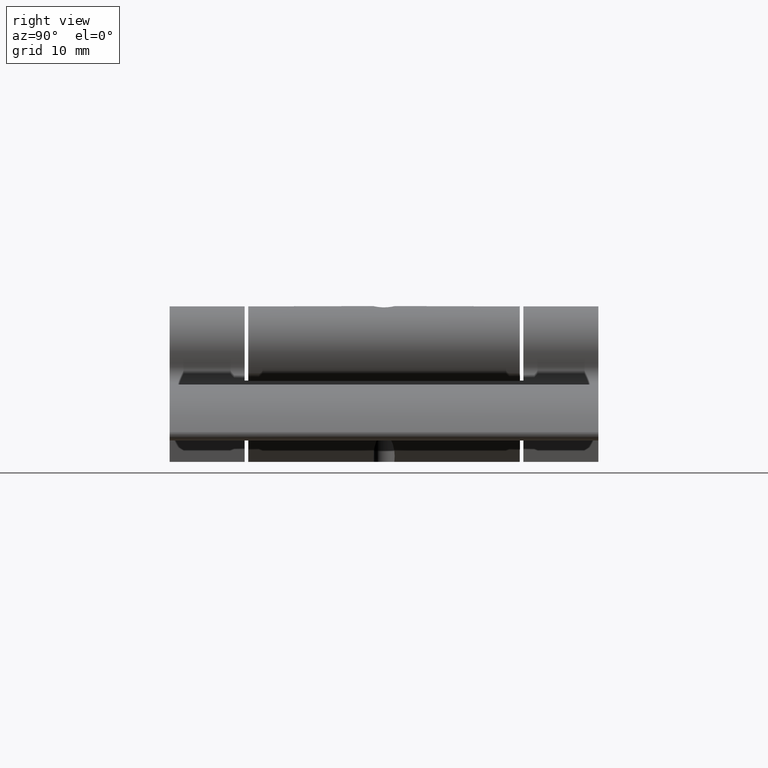
[diagram: clean part render]
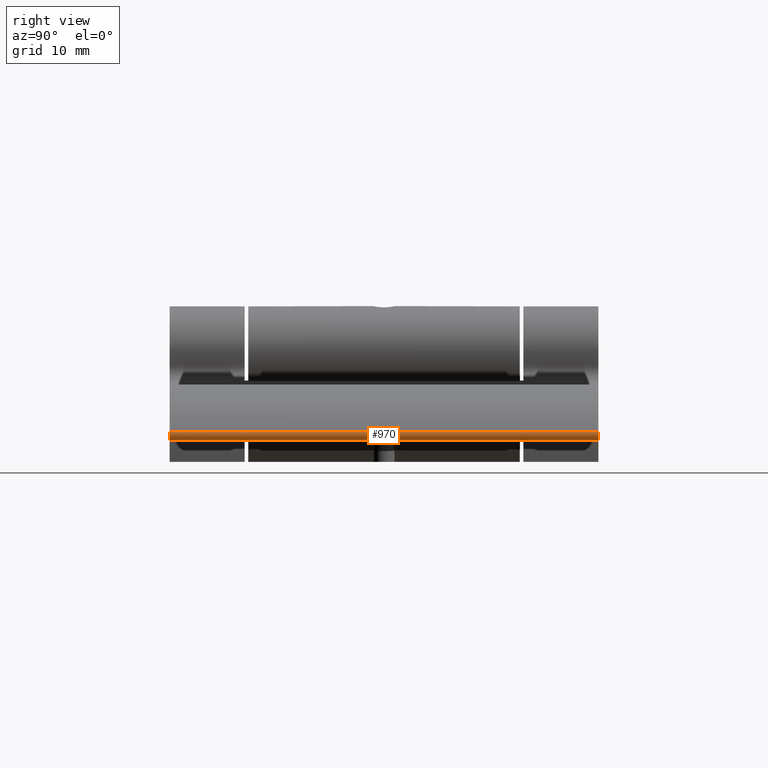
[diagram: same view with one face highlighted and labeled with its STEP entity id]
A machine part, right view. The second image highlights one B-rep face of the part: STEP entity #970.
In plain terms, the highlighted face is a freeform B-spline surface patch.
Its self-contained STEP definition (entity closure, byte-faithful):
#29=B_SPLINE_CURVE_WITH_KNOTS('',3,(#1605,#1606,#1607,#1608,#1609,#1610),
 .UNSPECIFIED.,.F.,.F.,(4,1,1,4),(0.228202346334164,0.285714285714286,0.571428571428571,
1.),.UNSPECIFIED.);
#30=B_SPLINE_CURVE_WITH_KNOTS('',3,(#1612,#1613,#1614,#1615),
 .UNSPECIFIED.,.F.,.F.,(4,4),(-6.,0.),.UNSPECIFIED.);
#31=B_SPLINE_CURVE_WITH_KNOTS('',3,(#1617,#1618,#1619,#1620,#1621,#1622),
 .UNSPECIFIED.,.F.,.F.,(4,1,1,4),(-1.,-0.571428571428571,-0.285714285714286,
-0.228202346334164),.UNSPECIFIED.);
#32=B_SPLINE_CURVE_WITH_KNOTS('',3,(#1624,#1625,#1626,#1627),
 .UNSPECIFIED.,.F.,.F.,(4,4),(-0.228202346334164,0.),.UNSPECIFIED.);
#33=B_SPLINE_CURVE_WITH_KNOTS('',3,(#1629,#1630,#1631,#1632),
 .UNSPECIFIED.,.F.,.F.,(4,4),(0.,6.),.UNSPECIFIED.);
#34=B_SPLINE_CURVE_WITH_KNOTS('',3,(#1633,#1634,#1635,#1636),
 .UNSPECIFIED.,.F.,.F.,(4,4),(0.,0.228202346334164),.UNSPECIFIED.);
#48=B_SPLINE_SURFACE_WITH_KNOTS('',3,3,((#1579,#1580,#1581,#1582),(#1583,
#1584,#1585,#1586),(#1587,#1588,#1589,#1590),(#1591,#1592,#1593,#1594),
(#1595,#1596,#1597,#1598),(#1599,#1600,#1601,#1602)),.UNSPECIFIED.,.F.,
 .F.,.F.,(4,1,1,4),(4,4),(0.,0.285714285714286,0.571428571428571,1.),(0.,
6.),.UNSPECIFIED.);
#127=FACE_OUTER_BOUND('',#175,.T.);
#175=EDGE_LOOP('',(#763,#764,#765,#766,#767,#768));
#456=VERTEX_POINT('',#1603);
#457=VERTEX_POINT('',#1604);
#458=VERTEX_POINT('',#1611);
#459=VERTEX_POINT('',#1616);
#460=VERTEX_POINT('',#1623);
#461=VERTEX_POINT('',#1628);
#577=EDGE_CURVE('',#456,#457,#29,.T.);
#578=EDGE_CURVE('',#457,#458,#30,.T.);
#579=EDGE_CURVE('',#458,#459,#31,.T.);
#580=EDGE_CURVE('',#459,#460,#32,.T.);
#581=EDGE_CURVE('',#460,#461,#33,.T.);
#582=EDGE_CURVE('',#461,#456,#34,.T.);
#763=ORIENTED_EDGE('',*,*,#577,.T.);
#764=ORIENTED_EDGE('',*,*,#578,.T.);
#765=ORIENTED_EDGE('',*,*,#579,.T.);
#766=ORIENTED_EDGE('',*,*,#580,.T.);
#767=ORIENTED_EDGE('',*,*,#581,.T.);
#768=ORIENTED_EDGE('',*,*,#582,.T.);
#970=ADVANCED_FACE('',(#127),#48,.F.);
#1579=CARTESIAN_POINT('Ctrl Pts',(39.9140261061395,30.,-11.1248543994776));
#1580=CARTESIAN_POINT('Ctrl Pts',(39.9140261061395,10.,-11.1248543994776));
#1581=CARTESIAN_POINT('Ctrl Pts',(39.9140261061395,-10.,-11.1248543994776));
#1582=CARTESIAN_POINT('Ctrl Pts',(39.9140261061395,-30.,-11.1248543994776));
#1583=CARTESIAN_POINT('Ctrl Pts',(39.9844922625149,30.,-11.2655053740222));
#1584=CARTESIAN_POINT('Ctrl Pts',(39.9844922625149,10.,-11.2655053740222));
#1585=CARTESIAN_POINT('Ctrl Pts',(39.9844922625149,-10.,-11.2655053740222));
#1586=CARTESIAN_POINT('Ctrl Pts',(39.9844922625149,-30.,-11.2655053740222));
#1587=CARTESIAN_POINT('Ctrl Pts',(40.0407595921038,30.,-11.5879287519314));
#1588=CARTESIAN_POINT('Ctrl Pts',(40.0407595921038,10.,-11.5879287519314));
#1589=CARTESIAN_POINT('Ctrl Pts',(40.0407595921038,-10.,-11.5879287519314));
#1590=CARTESIAN_POINT('Ctrl Pts',(40.0407595921038,-30.,-11.5879287519314));
#1591=CARTESIAN_POINT('Ctrl Pts',(39.8135844392406,30.,-12.1166805367457));
#1592=CARTESIAN_POINT('Ctrl Pts',(39.8135844392406,10.,-12.1166805367457));
#1593=CARTESIAN_POINT('Ctrl Pts',(39.8135844392406,-10.,-12.1166805367457));
#1594=CARTESIAN_POINT('Ctrl Pts',(39.8135844392406,-30.,-12.1166805367457));
#1595=CARTESIAN_POINT('Ctrl Pts',(39.4243687454637,30.,-12.3));
#1596=CARTESIAN_POINT('Ctrl Pts',(39.4243687454637,10.,-12.3));
#1597=CARTESIAN_POINT('Ctrl Pts',(39.4243687454637,-10.,-12.3));
#1598=CARTESIAN_POINT('Ctrl Pts',(39.4243687454637,-30.,-12.3));
#1599=CARTESIAN_POINT('Ctrl Pts',(39.1883954511527,30.,-12.3));
#1600=CARTESIAN_POINT('Ctrl Pts',(39.1883954511527,10.,-12.3));
#1601=CARTESIAN_POINT('Ctrl Pts',(39.1883954511527,-10.,-12.3));
#1602=CARTESIAN_POINT('Ctrl Pts',(39.1883954511527,-30.,-12.3));
#1603=CARTESIAN_POINT('',(40.,-30.,-11.4883954511528));
#1604=CARTESIAN_POINT('',(39.1883954511527,-30.,-12.3));
#1605=CARTESIAN_POINT('Ctrl Pts',(39.9997218378176,-30.,-11.488161456285));
#1606=CARTESIAN_POINT('Ctrl Pts',(39.999756441912,-30.,-11.5197933238789));
#1607=CARTESIAN_POINT('Ctrl Pts',(39.9889176891916,-30.,-11.7085911498544));
#1608=CARTESIAN_POINT('Ctrl Pts',(39.8135844392406,-30.,-12.1166805367457));
#1609=CARTESIAN_POINT('Ctrl Pts',(39.4243687454637,-30.,-12.3));
#1610=CARTESIAN_POINT('Ctrl Pts',(39.1883954511527,-30.,-12.3));
#1611=CARTESIAN_POINT('',(39.1883954511527,30.,-12.3));
#1612=CARTESIAN_POINT('Ctrl Pts',(39.1883954511527,-30.,-12.3));
#1613=CARTESIAN_POINT('Ctrl Pts',(39.1883954511527,-10.,-12.3));
#1614=CARTESIAN_POINT('Ctrl Pts',(39.1883954511527,10.,-12.3));
#1615=CARTESIAN_POINT('Ctrl Pts',(39.1883954511527,30.,-12.3));
#1616=CARTESIAN_POINT('',(40.,30.,-11.4883954511528));
#1617=CARTESIAN_POINT('Ctrl Pts',(39.1883954511527,30.,-12.3));
#1618=CARTESIAN_POINT('Ctrl Pts',(39.4243687454637,30.,-12.3));
#1619=CARTESIAN_POINT('Ctrl Pts',(39.8135844392406,30.,-12.1166805367457));
#1620=CARTESIAN_POINT('Ctrl Pts',(39.9889176891916,30.,-11.7085911498544));
#1621=CARTESIAN_POINT('Ctrl Pts',(39.999756441912,30.,-11.5197933238789));
#1622=CARTESIAN_POINT('Ctrl Pts',(39.9997218378176,30.,-11.488161456285));
#1623=CARTESIAN_POINT('',(39.9140261061395,30.,-11.1248543994776));
#1624=CARTESIAN_POINT('Ctrl Pts',(39.9997218378176,30.,-11.488161456285));
#1625=CARTESIAN_POINT('Ctrl Pts',(39.9995845317968,30.,-11.3626489717178));
#1626=CARTESIAN_POINT('Ctrl Pts',(39.9703080039166,30.,-11.237193487896));
#1627=CARTESIAN_POINT('Ctrl Pts',(39.9140261061395,30.,-11.1248543994776));
#1628=CARTESIAN_POINT('',(39.9140261061395,-30.,-11.1248543994776));
#1629=CARTESIAN_POINT('Ctrl Pts',(39.9140261061395,30.,-11.1248543994776));
#1630=CARTESIAN_POINT('Ctrl Pts',(39.9140261061395,10.,-11.1248543994776));
#1631=CARTESIAN_POINT('Ctrl Pts',(39.9140261061395,-10.,-11.1248543994776));
#1632=CARTESIAN_POINT('Ctrl Pts',(39.9140261061395,-30.,-11.1248543994776));
#1633=CARTESIAN_POINT('Ctrl Pts',(39.9140261061395,-30.,-11.1248543994776));
#1634=CARTESIAN_POINT('Ctrl Pts',(39.9703080039166,-30.,-11.237193487896));
#1635=CARTESIAN_POINT('Ctrl Pts',(39.9995845317968,-30.,-11.3626489717178));
#1636=CARTESIAN_POINT('Ctrl Pts',(39.9997218378176,-30.,-11.488161456285));